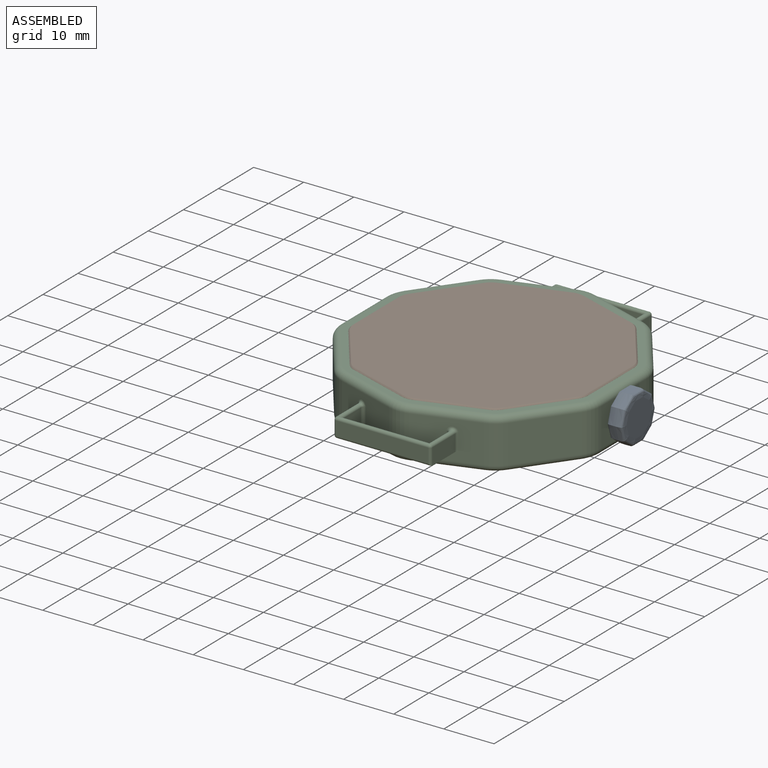
[diagram: assembled view]
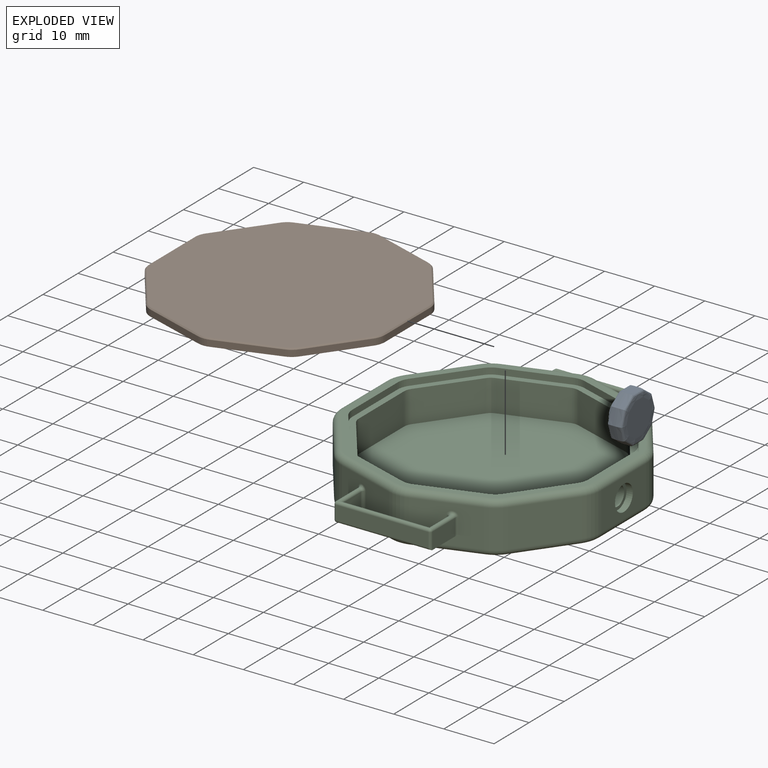
[diagram: exploded view]
GUIDED TOUR — MATED ASSEMBLY (Onshape document c3b9c93ae3debf44490683af, AutoMate assembly c3b9c93ae3debf44490683af_7351a80720d2eafa81e12c14_97d28fd3ea5c298e1b3ae990_default)

This assembly has 3 components, labeled P0..P2 below (a component is one placed occurrence of a part; the same part can appear more than once), held together by 2 mates. A mate is a constraint between two components; its type names the relative motion it leaves free:
  FASTENED — locks the two components together rigidly (no relative motion),
  REVOLUTE — leaves rotation about the listed axis free (a hinge).
Axis/direction vectors are unit vectors and 'through' points are millimeter coordinates, both in the assembly's world frame.

MATES
  1. REVOLUTE "Revolute 1": P0 <-> P2, axis (1.000, 0.000, 0.000) through (60.04, -31.11, -4.34) mm
  2. FASTENED "Fastened 1": P1 <-> P2, direction (1.000, 0.000, 0.000) through (58.13, -24.70, 0.10) mm

ASSEMBLY ORDER
  1. P0 — the base component [order verified]
  2. P2 [order verified]
  3. P1 [order verified]
Order-tag legend:
  [order verified] — this step's position reverses a verified removal order: the component was checked to insert without passing through the ones already placed.

Of the 3 components, 1 carries the full construction recipe — the FeatureScript program that regenerates the part's solid from scratch; the rest are supplied as boundary geometry only.
Each toured component is shown spotlighted twice — in the assembled view, then in the exploded view, where a leader line traces a displaced component back to its assembled socket (saturated green if recipe-attached, orange if geometry-only; every other component desaturated gray) — followed by its recipe or geometry summary and the mates that hold it.
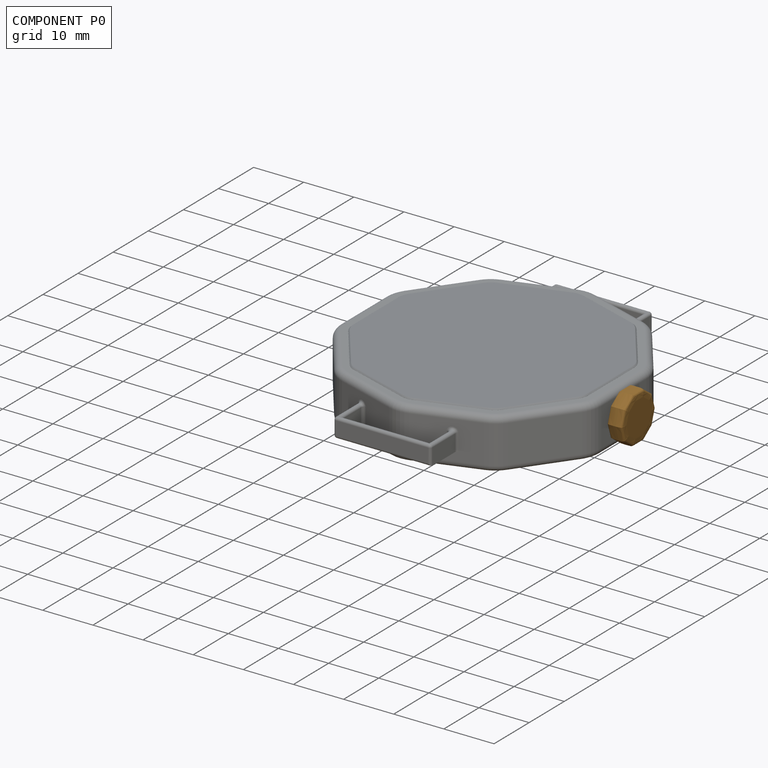
[diagram: component P0 — assembled]
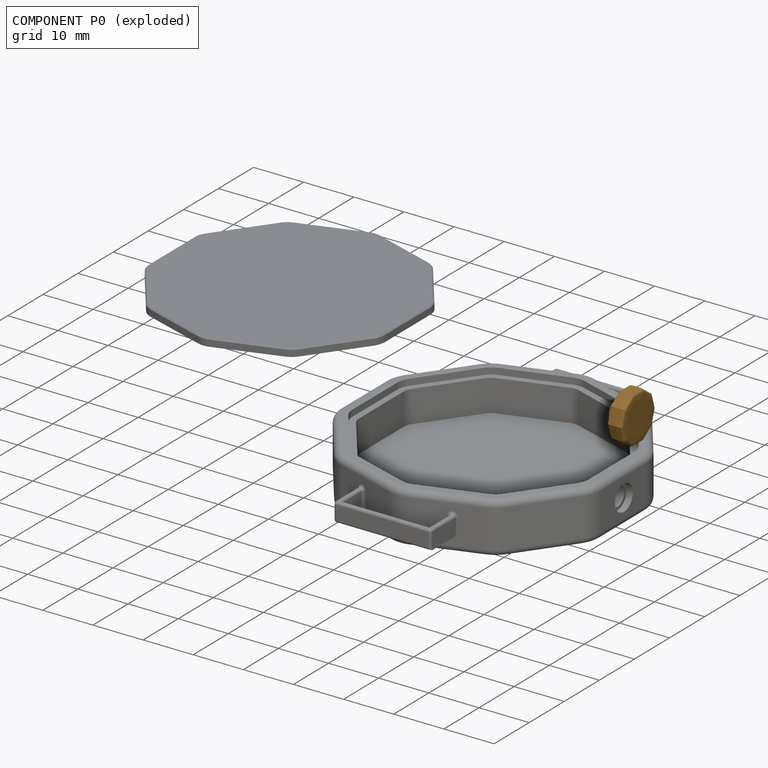
[diagram: component P0 — exploded]
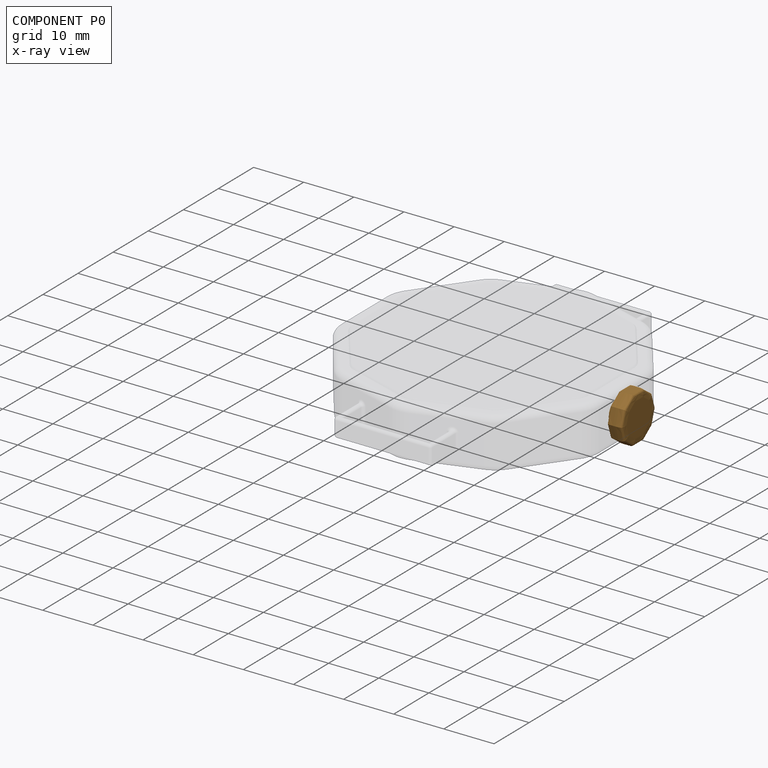
[diagram: component P0 — x-ray view]
COMPONENT P0 — geometry summary (no construction recipe available for this part):
  bounding box: 9.8 x 9.3 x 4.3 mm
  B-rep topology: 1 solid, 34 faces, 146 edges
  volume: 227 mm^3 (58% of its bounding box)
  symmetry: 2-fold rotationally symmetric about the z axis; mirror-symmetric across its x mid-plane, y mid-plane
Held by: REVOLUTE mate "Revolute 1" to P2.
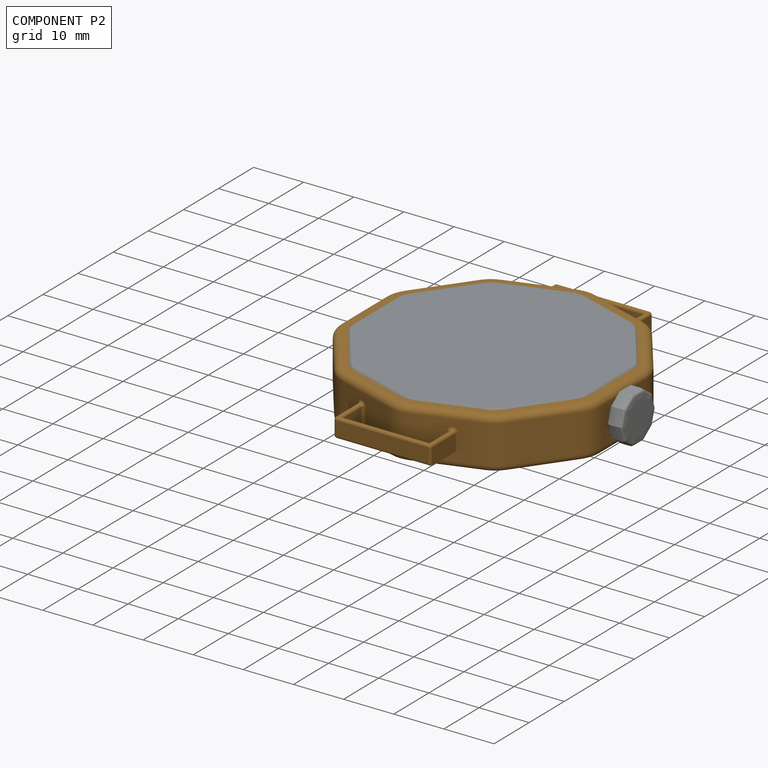
[diagram: component P2 — assembled]
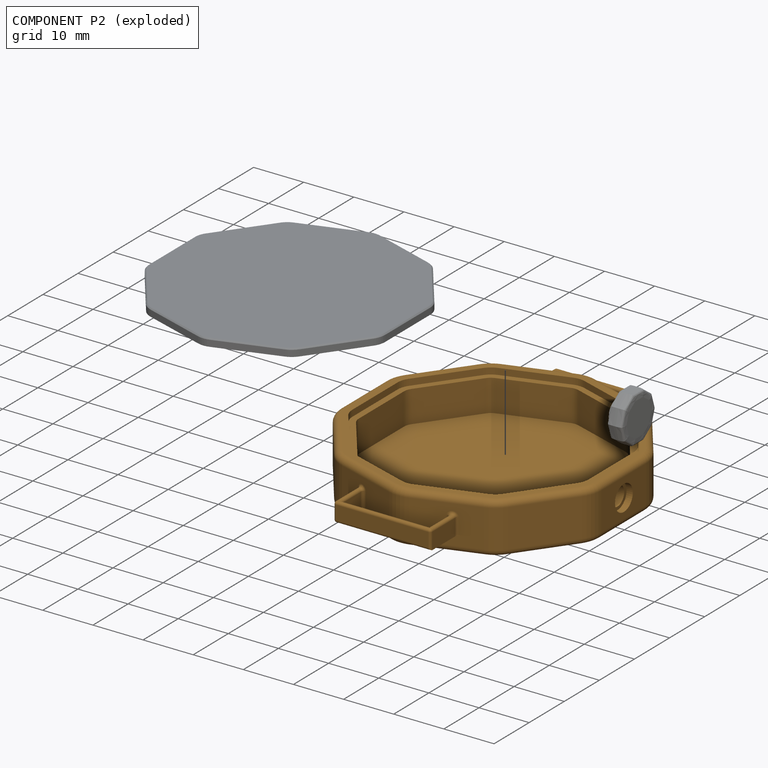
[diagram: component P2 — exploded]
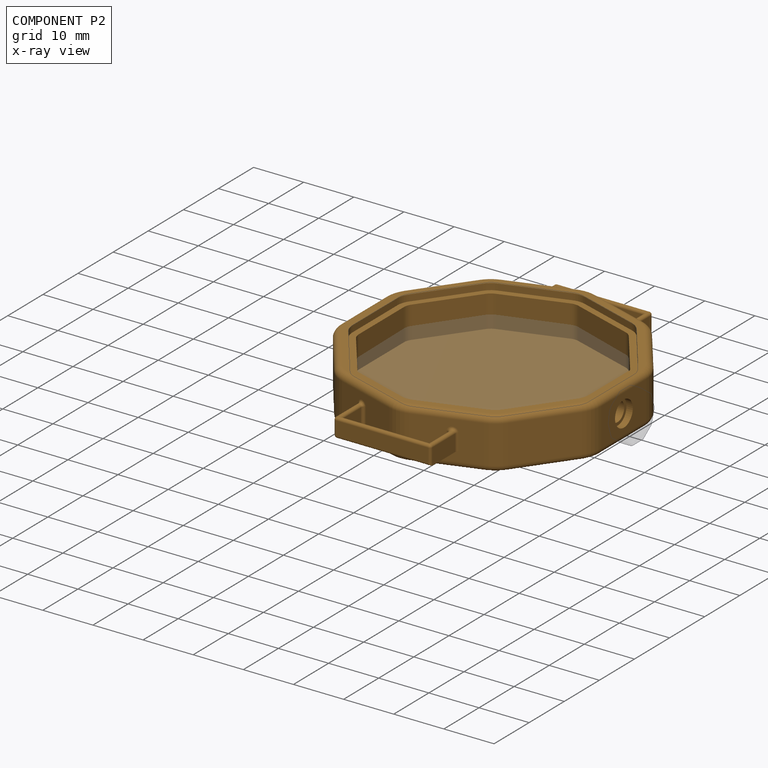
[diagram: component P2 — x-ray view]
COMPONENT P2 — geometry summary (no construction recipe available for this part):
  bounding box: 63.3 x 53.2 x 10.2 mm
  B-rep topology: 1 solid, 158 faces, 773 edges
  volume: 9968 mm^3 (29% of its bounding box)
  symmetry: mirror-symmetric across its y mid-plane
Held by: REVOLUTE mate "Revolute 1" to P0; FASTENED mate "Fastened 1" to P1.
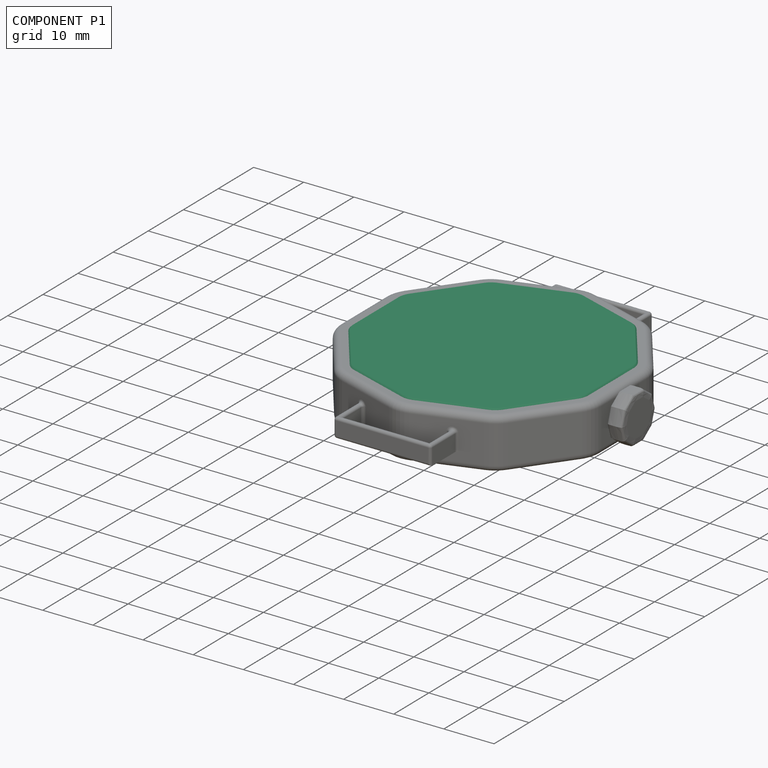
[diagram: component P1 — assembled]
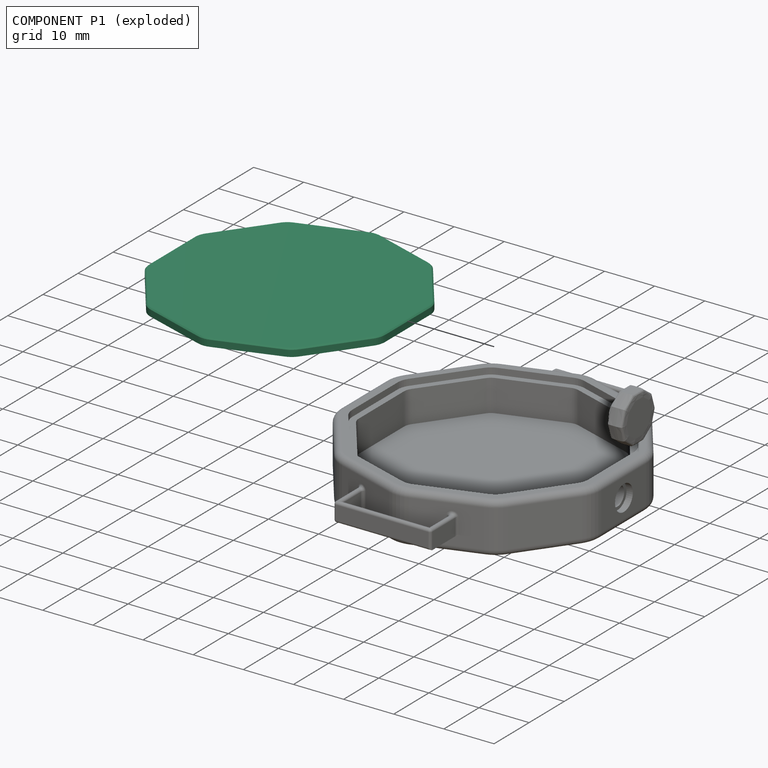
[diagram: component P1 — exploded]
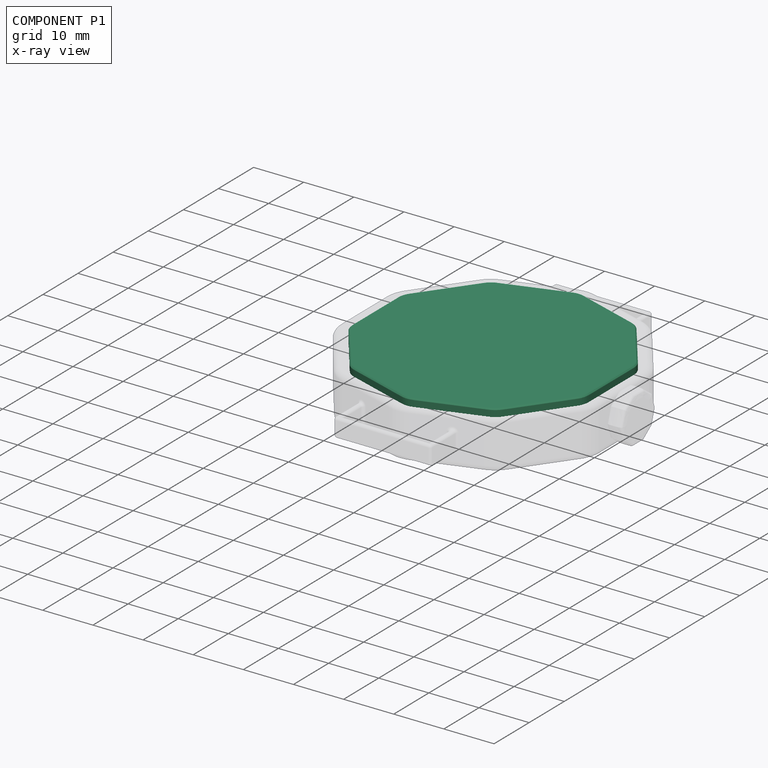
[diagram: component P1 — x-ray view]
COMPONENT P1 — recipe-attached (CADFS 00588065, mesh-verified: the recipe's output STEP matches this component's geometry to below the mesh-comparison resolution (tessellation chordal tolerance ~0.102 mm)).
Held by: FASTENED mate "Fastened 1" to P2.
Construction recipe (FeatureScript — the CAD program that rebuilds this solid; sketch coordinates are in the units given by the * unit suffixes, e.g. mm):

FeatureScript 1511;
import(path : "onshape/std/geometry.fs", version : "1511.0");
import(path : "onshape/std/common.fs", version : "1511.0");
const mm = millimeter;
const VERTEX = EntityType.VERTEX;
const EDGE = EntityType.EDGE;
const FACE = EntityType.FACE;
const BODY = EntityType.BODY;
function v(x, y){return vector(x, y);}
function OD(order){return orderDisambiguation(order);}
function OSD(set){return originalSetDisambiguation(set);}
function TD(topology){return topologyDisambiguation(topology);}
function TDD(query){return trueDependencyDisambiguation(query);}
function sQuery(a, b, c) {return sketchEntityQuery(a, b, c);}

annotation { "Feature Type Name" : "Feature", "Feature Type Description" : "" }
export const myFeature = defineFeature(function(context is Context, id is Id, definition is map)
    precondition{}
    {
        {
            var Q0;
            Q0=qCreatedBy(makeId("Top.planeOp"),FACE);
            var sketch = newSketch(context, id + "F0", { "sketchPlane" : qUnion([Q0])});
            skCircle(sketch, "E0.cCircle", {"center": v(0, 0) * mm, "radius": 26.09 * mm, "construction": true});
            skLineSegment(sketch, "E0.0", {"start": v(26.09, 8.48) * mm, "end": v(26.09, -8.48) * mm});
            skLineSegment(sketch, "E0.1", {"start": v(26.09, -8.48) * mm, "end": v(16.12, -22.2) * mm});
            skLineSegment(sketch, "E0.2", {"start": v(16.12, -22.2) * mm, "end": v(0, -27.43) * mm});
            skLineSegment(sketch, "E0.3", {"start": v(0, -27.43) * mm, "end": v(-16.12, -22.2) * mm});
            skLineSegment(sketch, "E0.4", {"start": v(-16.12, -22.2) * mm, "end": v(-26.09, -8.48) * mm});
            skLineSegment(sketch, "E0.5", {"start": v(-26.09, -8.48) * mm, "end": v(-26.09, 8.48) * mm});
            skLineSegment(sketch, "E0.6", {"start": v(-26.09, 8.48) * mm, "end": v(-16.12, 22.2) * mm});
            skLineSegment(sketch, "E0.7", {"start": v(-16.12, 22.2) * mm, "end": v(0, 27.43) * mm});
            skLineSegment(sketch, "E0.8", {"start": v(0, 27.43) * mm, "end": v(16.12, 22.2) * mm});
            skLineSegment(sketch, "E0.9", {"start": v(16.12, 22.2) * mm, "end": v(26.09, 8.48) * mm});
            skPoint(sketch, "E0.0.midPoint", {"position": v(26.09, 0) * mm});
            skSolve(sketch);
        }
        {
            var Q0;
            Q0=qSketchRegion(id+"F0",true);
            extrude(context, id + "F1", {"entities" : qUnion([Q0]), "endBound" : BoundingType.SYMMETRIC, "depth" : 10.16 * mm, "offsetDistance" : 25.4 * mm});
        }
        {
            var Q0;
            Q0=makeQuery(id+"F1.opExtrude","SWEPT_EDGE",EDGE,{"disambiguationData":[OSD([sQuery(id+"F0.wireOp",EDGE,"E0.3"),sQuery(id+"F0.wireOp",EDGE,"E0.4")])]});
            var Q1;
            Q1=makeQuery(id+"F1.opExtrude","SWEPT_EDGE",EDGE,{"disambiguationData":[OSD([sQuery(id+"F0.wireOp",EDGE,"E0.4"),sQuery(id+"F0.wireOp",EDGE,"E0.5")])]});
            var Q2;
            Q2=makeQuery(id+"F1.opExtrude","SWEPT_EDGE",EDGE,{"disambiguationData":[OSD([sQuery(id+"F0.wireOp",EDGE,"E0.5"),sQuery(id+"F0.wireOp",EDGE,"E0.6")])]});
            var Q3;
            Q3=makeQuery(id+"F1.opExtrude","SWEPT_EDGE",EDGE,{"disambiguationData":[OSD([sQuery(id+"F0.wireOp",EDGE,"E0.6"),sQuery(id+"F0.wireOp",EDGE,"E0.7")])]});
            var Q4;
            Q4=makeQuery(id+"F1.opExtrude","SWEPT_EDGE",EDGE,{"disambiguationData":[OSD([sQuery(id+"F0.wireOp",EDGE,"E0.7"),sQuery(id+"F0.wireOp",EDGE,"E0.8")])]});
            var Q5;
            Q5=makeQuery(id+"F1.opExtrude","SWEPT_EDGE",EDGE,{"disambiguationData":[OSD([sQuery(id+"F0.wireOp",EDGE,"E0.8"),sQuery(id+"F0.wireOp",EDGE,"E0.9")])]});
            var Q6;
            Q6=makeQuery(id+"F1.opExtrude","SWEPT_EDGE",EDGE,{"disambiguationData":[OSD([sQuery(id+"F0.wireOp",EDGE,"E0.0"),sQuery(id+"F0.wireOp",EDGE,"E0.9")])]});
            var Q7;
            Q7=makeQuery(id+"F1.opExtrude","SWEPT_EDGE",EDGE,{"disambiguationData":[OSD([sQuery(id+"F0.wireOp",EDGE,"E0.1"),sQuery(id+"F0.wireOp",EDGE,"E0.2")])]});
            var Q8;
            Q8=makeQuery(id+"F1.opExtrude","SWEPT_EDGE",EDGE,{"disambiguationData":[OSD([sQuery(id+"F0.wireOp",EDGE,"E0.2"),sQuery(id+"F0.wireOp",EDGE,"E0.3")])]});
            var Q9;
            Q9=makeQuery(id+"F1.opExtrude","SWEPT_EDGE",EDGE,{"disambiguationData":[OSD([sQuery(id+"F0.wireOp",EDGE,"E0.0"),sQuery(id+"F0.wireOp",EDGE,"E0.1")])]});
            fillet(context, id + "F2", {"entities" : qUnion([Q0, Q1, Q2, Q3, Q4, Q5, Q6, Q7, Q8, Q9]), "radius" : 6.35 * mm, "tangentPropagation" : true, "allowEdgeOverflow" : false});
        }
        {
            var Q0;
            Q0=makeQuery(id+"F1.opExtrude","CAP_FACE",FACE,{"disambiguationData":[OSD([sQuery(id+"F0.wireOp",EDGE,"E0.0"),sQuery(id+"F0.wireOp",EDGE,"E0.1"),sQuery(id+"F0.wireOp",EDGE,"E0.2"),sQuery(id+"F0.wireOp",EDGE,"E0.3"),sQuery(id+"F0.wireOp",EDGE,"E0.4"),sQuery(id+"F0.wireOp",EDGE,"E0.5"),sQuery(id+"F0.wireOp",EDGE,"E0.6"),sQuery(id+"F0.wireOp",EDGE,"E0.7"),sQuery(id+"F0.wireOp",EDGE,"E0.8"),sQuery(id+"F0.wireOp",EDGE,"E0.9")])],"isStart":true});
            fillet(context, id + "F3", {"entities" : qUnion([Q0]), "radius" : 1.27 * mm, "tangentPropagation" : true, "allowEdgeOverflow" : false});
        }
        {
            var Q0;
            Q0=makeQuery(id+"F1.opExtrude","CAP_FACE",FACE,{"disambiguationData":[OSD([sQuery(id+"F0.wireOp",EDGE,"E0.0"),sQuery(id+"F0.wireOp",EDGE,"E0.1"),sQuery(id+"F0.wireOp",EDGE,"E0.2"),sQuery(id+"F0.wireOp",EDGE,"E0.3"),sQuery(id+"F0.wireOp",EDGE,"E0.4"),sQuery(id+"F0.wireOp",EDGE,"E0.5"),sQuery(id+"F0.wireOp",EDGE,"E0.6"),sQuery(id+"F0.wireOp",EDGE,"E0.7"),sQuery(id+"F0.wireOp",EDGE,"E0.8"),sQuery(id+"F0.wireOp",EDGE,"E0.9")])],"isStart":false});
            var sketch = newSketch(context, id + "F4", { "sketchPlane" : qUnion([Q0])});
            skLineSegment(sketch, "E1.0", {"start": v(-22.82, -8.65) * mm, "end": v(-15.28, -19.03) * mm});
            skArc(sketch, "E1.1", {"start": v(-23.55, -6.41) * mm, "mid": v(-23.36, -7.6) * mm, "end": v(-22.82, -8.65) * mm});
            skLineSegment(sketch, "E1.2", {"start": v(-23.55, 6.41) * mm, "end": v(-23.55, -6.41) * mm});
            skArc(sketch, "E1.3", {"start": v(-22.82, 8.65) * mm, "mid": v(-23.36, 7.6) * mm, "end": v(-23.55, 6.41) * mm});
            skLineSegment(sketch, "E1.4", {"start": v(-15.28, 19.03) * mm, "end": v(-22.82, 8.65) * mm});
            skArc(sketch, "E1.5", {"start": v(-15.28, -19.03) * mm, "mid": v(-14.44, -19.87) * mm, "end": v(-13.38, -20.41) * mm});
            skArc(sketch, "E1.6", {"start": v(-13.38, 20.41) * mm, "mid": v(-14.44, 19.87) * mm, "end": v(-15.28, 19.03) * mm});
            skLineSegment(sketch, "E1.7", {"start": v(-1.18, 24.38) * mm, "end": v(-13.38, 20.41) * mm});
            skArc(sketch, "E1.8", {"start": v(1.18, 24.38) * mm, "mid": v(0, 24.57) * mm, "end": v(-1.18, 24.38) * mm});
            skLineSegment(sketch, "E1.9", {"start": v(13.38, 20.41) * mm, "end": v(1.18, 24.38) * mm});
            skArc(sketch, "E1.10", {"start": v(13.38, -20.41) * mm, "mid": v(14.44, -19.87) * mm, "end": v(15.28, -19.03) * mm});
            skLineSegment(sketch, "E1.11", {"start": v(1.18, -24.38) * mm, "end": v(13.38, -20.41) * mm});
            skArc(sketch, "E1.12", {"start": v(-1.18, -24.38) * mm, "mid": v(0, -24.57) * mm, "end": v(1.18, -24.38) * mm});
            skLineSegment(sketch, "E1.13", {"start": v(-13.38, -20.41) * mm, "end": v(-1.18, -24.38) * mm});
            skLineSegment(sketch, "E1.14", {"start": v(15.28, -19.03) * mm, "end": v(22.82, -8.65) * mm});
            skArc(sketch, "E1.15", {"start": v(22.82, -8.65) * mm, "mid": v(23.36, -7.6) * mm, "end": v(23.55, -6.41) * mm});
            skLineSegment(sketch, "E1.16", {"start": v(23.55, -6.41) * mm, "end": v(23.55, 6.41) * mm});
            skArc(sketch, "E1.17", {"start": v(23.55, 6.41) * mm, "mid": v(23.36, 7.6) * mm, "end": v(22.82, 8.65) * mm});
            skLineSegment(sketch, "E1.18", {"start": v(22.82, 8.65) * mm, "end": v(15.28, 19.03) * mm});
            skArc(sketch, "E1.19", {"start": v(15.28, 19.03) * mm, "mid": v(14.44, 19.87) * mm, "end": v(13.38, 20.41) * mm});
            skSolve(sketch);
        }
        {
            var Q0;
            Q0=makeQuery(id+"F4.imprint","IMPRINT",FACE,{"disambiguationData":[TD([[makeQuery(id+"F4.imprint","IMPRINT",EDGE,{"derivedFrom":sQuery(id+"F4.wireOp",EDGE,"E1.0")}),1.0]])]});
            extrude(context, id + "F5", {"entities" : qUnion([Q0]), "operationType" : NewBodyOperationType.REMOVE, "oppositeDirection" : true, "depth" : 1.27 * mm, "offsetDistance" : 25.4 * mm});
        }
        {
            var Q0;
            Q0=makeQuery(id+"F1.opExtrude","SWEPT_FACE",FACE,{"disambiguationData":[OSD([sQuery(id+"F0.wireOp",EDGE,"E0.0")])]});
            var sketch = newSketch(context, id + "F6", { "sketchPlane" : qUnion([Q0])});
            skPoint(sketch, "E2", {"position": v(0, 0) * mm});
            skSolve(sketch);
        }
        {
            var Q0;
            Q0=sQuery(id+"F6.wireOp",VERTEX,"E2");
            var Q1;
            Q1=makeQuery(id+"F1.opExtrude","SWEPT_BODY",BODY,{"disambiguationData":[OSD([sQuery(id+"F0.wireOp",EDGE,"E0.0"),sQuery(id+"F0.wireOp",EDGE,"E0.1"),sQuery(id+"F0.wireOp",EDGE,"E0.2"),sQuery(id+"F0.wireOp",EDGE,"E0.3"),sQuery(id+"F0.wireOp",EDGE,"E0.4"),sQuery(id+"F0.wireOp",EDGE,"E0.5"),sQuery(id+"F0.wireOp",EDGE,"E0.6"),sQuery(id+"F0.wireOp",EDGE,"E0.7"),sQuery(id+"F0.wireOp",EDGE,"E0.8"),sQuery(id+"F0.wireOp",EDGE,"E0.9")])]});
            hole(context, id + "F7", {"style" : HoleStyle.C_BORE, "endStyle" : HoleEndStyle.BLIND, "holeDiameter" : 3.8 * mm, "cBoreDiameter" : 5.08 * mm, "cBoreDepth" : 1.27 * mm, "majorDiameter" : 6.35 * mm, "holeDepth" : 12.7 * mm, "isTappedThrough" : true, "tappedDepth" : 12.7 * mm, "tapClearance" : 3, "locations" : qUnion([Q0]), "scope" : qUnion([Q1])});
        }
        {
            var Q0;
            Q0=makeQuery(id+"F1.opExtrude","CAP_FACE",FACE,{"disambiguationData":[OSD([sQuery(id+"F0.wireOp",EDGE,"E0.0"),sQuery(id+"F0.wireOp",EDGE,"E0.1"),sQuery(id+"F0.wireOp",EDGE,"E0.2"),sQuery(id+"F0.wireOp",EDGE,"E0.3"),sQuery(id+"F0.wireOp",EDGE,"E0.4"),sQuery(id+"F0.wireOp",EDGE,"E0.5"),sQuery(id+"F0.wireOp",EDGE,"E0.6"),sQuery(id+"F0.wireOp",EDGE,"E0.7"),sQuery(id+"F0.wireOp",EDGE,"E0.8"),sQuery(id+"F0.wireOp",EDGE,"E0.9")])],"isStart":false});
            extrude(context, id + "F8", {"entities" : qUnion([Q0]), "operationType" : NewBodyOperationType.REMOVE, "oppositeDirection" : true, "depth" : 25.4 * mm, "offsetDistance" : 25.4 * mm});
        }
        {
            var Q0;
            Q0=makeQuery(id+"F5.boolean.opBoolean","COPY",FACE,{"derivedFrom":makeQuery(id+"F5.opExtrude","CAP_FACE",FACE,{"disambiguationData":[OSD([sQuery(id+"F4.wireOp",EDGE,"E1.0"),sQuery(id+"F4.wireOp",EDGE,"E1.1"),sQuery(id+"F4.wireOp",EDGE,"E1.2"),sQuery(id+"F4.wireOp",EDGE,"E1.3"),sQuery(id+"F4.wireOp",EDGE,"E1.4"),sQuery(id+"F4.wireOp",EDGE,"E1.5"),sQuery(id+"F4.wireOp",EDGE,"E1.6"),sQuery(id+"F4.wireOp",EDGE,"E1.7"),sQuery(id+"F4.wireOp",EDGE,"E1.8"),sQuery(id+"F4.wireOp",EDGE,"E1.9"),sQuery(id+"F4.wireOp",EDGE,"E1.10"),sQuery(id+"F4.wireOp",EDGE,"E1.11"),sQuery(id+"F4.wireOp",EDGE,"E1.12"),sQuery(id+"F4.wireOp",EDGE,"E1.13"),sQuery(id+"F4.wireOp",EDGE,"E1.14"),sQuery(id+"F4.wireOp",EDGE,"E1.15"),sQuery(id+"F4.wireOp",EDGE,"E1.16"),sQuery(id+"F4.wireOp",EDGE,"E1.17"),sQuery(id+"F4.wireOp",EDGE,"E1.18"),sQuery(id+"F4.wireOp",EDGE,"E1.19")])],"isStart":false})});
            extrude(context, id + "F9", {"entities" : qUnion([Q0]), "operationType" : NewBodyOperationType.REMOVE, "oppositeDirection" : true, "depth" : 6.35 * mm, "offsetDistance" : 25.4 * mm});
        }
        {
            var Q0;
            Q0=makeQuery(id+"F9.boolean.opBoolean","COPY",FACE,{"derivedFrom":makeQuery(id+"F9.opExtrude","CAP_FACE",FACE,{"disambiguationData":[OSD([sQuery(id+"F4.wireOp",EDGE,"E1.0"),sQuery(id+"F4.wireOp",EDGE,"E1.1"),sQuery(id+"F4.wireOp",EDGE,"E1.2"),sQuery(id+"F4.wireOp",EDGE,"E1.3"),sQuery(id+"F4.wireOp",EDGE,"E1.4"),sQuery(id+"F4.wireOp",EDGE,"E1.5"),sQuery(id+"F4.wireOp",EDGE,"E1.6"),sQuery(id+"F4.wireOp",EDGE,"E1.7"),sQuery(id+"F4.wireOp",EDGE,"E1.8"),sQuery(id+"F4.wireOp",EDGE,"E1.9"),sQuery(id+"F4.wireOp",EDGE,"E1.10"),sQuery(id+"F4.wireOp",EDGE,"E1.11"),sQuery(id+"F4.wireOp",EDGE,"E1.12"),sQuery(id+"F4.wireOp",EDGE,"E1.13"),sQuery(id+"F4.wireOp",EDGE,"E1.14"),sQuery(id+"F4.wireOp",EDGE,"E1.15"),sQuery(id+"F4.wireOp",EDGE,"E1.16"),sQuery(id+"F4.wireOp",EDGE,"E1.17"),sQuery(id+"F4.wireOp",EDGE,"E1.18"),sQuery(id+"F4.wireOp",EDGE,"E1.19")])],"isStart":false})});
            extrude(context, id + "F10", {"entities" : qUnion([Q0]), "operationType" : NewBodyOperationType.REMOVE, "oppositeDirection" : true, "depth" : 1.02 * mm, "offsetDistance" : 25.4 * mm});
        }
        {
            var Q0;
            Q0=makeQuery(id+"F10.boolean.opBoolean","COPY",FACE,{"derivedFrom":makeQuery(id+"F10.opExtrude","CAP_FACE",FACE,{"disambiguationData":[OSD([sQuery(id+"F4.wireOp",EDGE,"E1.0"),sQuery(id+"F4.wireOp",EDGE,"E1.1"),sQuery(id+"F4.wireOp",EDGE,"E1.2"),sQuery(id+"F4.wireOp",EDGE,"E1.3"),sQuery(id+"F4.wireOp",EDGE,"E1.4"),sQuery(id+"F4.wireOp",EDGE,"E1.5"),sQuery(id+"F4.wireOp",EDGE,"E1.6"),sQuery(id+"F4.wireOp",EDGE,"E1.7"),sQuery(id+"F4.wireOp",EDGE,"E1.8"),sQuery(id+"F4.wireOp",EDGE,"E1.9"),sQuery(id+"F4.wireOp",EDGE,"E1.10"),sQuery(id+"F4.wireOp",EDGE,"E1.11"),sQuery(id+"F4.wireOp",EDGE,"E1.12"),sQuery(id+"F4.wireOp",EDGE,"E1.13"),sQuery(id+"F4.wireOp",EDGE,"E1.14"),sQuery(id+"F4.wireOp",EDGE,"E1.15"),sQuery(id+"F4.wireOp",EDGE,"E1.16"),sQuery(id+"F4.wireOp",EDGE,"E1.17"),sQuery(id+"F4.wireOp",EDGE,"E1.18"),sQuery(id+"F4.wireOp",EDGE,"E1.19")])],"isStart":false})});
            fillet(context, id + "F11", {"entities" : qUnion([Q0]), "radius" : 0.25 * mm, "tangentPropagation" : true, "rho" : .1, "crossSection" : FilletCrossSection.CONIC, "allowEdgeOverflow" : false});
        }
    });
PROVENANCE & LICENSES
Assembly (occurrences, transforms, mates, per-part STEP geometry): AutoMate dataset, Zenodo record 7776208, CC0.
Construction recipes: CADFS (HuggingFace VladPyatov/CADFS, CC-BY-4.0, layered over the ABC dataset), FeatureScript reconstruction programs keyed by ABC model id.
Join: ABC meta listings map ABC model id -> Onshape documentId; within a shared document, parts are matched by geometric signature (bounding-box dims + volume at 0.1% relative tolerance, exact B-rep face/solid counts).
Verification: 1 of this assembly's 3 components carries a recipe attachment, and every attachment is mesh-verified: the CADFS STEP and the AutoMate member STEP were compared as meshes in their shared local frame (symmetric sampled-point-to-mesh distance); worst across the 1 attachment: below the mesh-comparison resolution (tessellation chordal tolerance ~0.102 mm) on a 68 mm part.
Renders: orthographic iso camera (az 35 / el 25); the floor grid conveys scale (grid pitch printed in each image; no ruler). In the exploded view each component is displaced by its stored offset vector: the offsets alone carry the explosion direction (mate normal/axis signs are not orientation cues and do not encode it), and separation distances are assigned per mate-chain, not proportionally to assembly-order depth.
